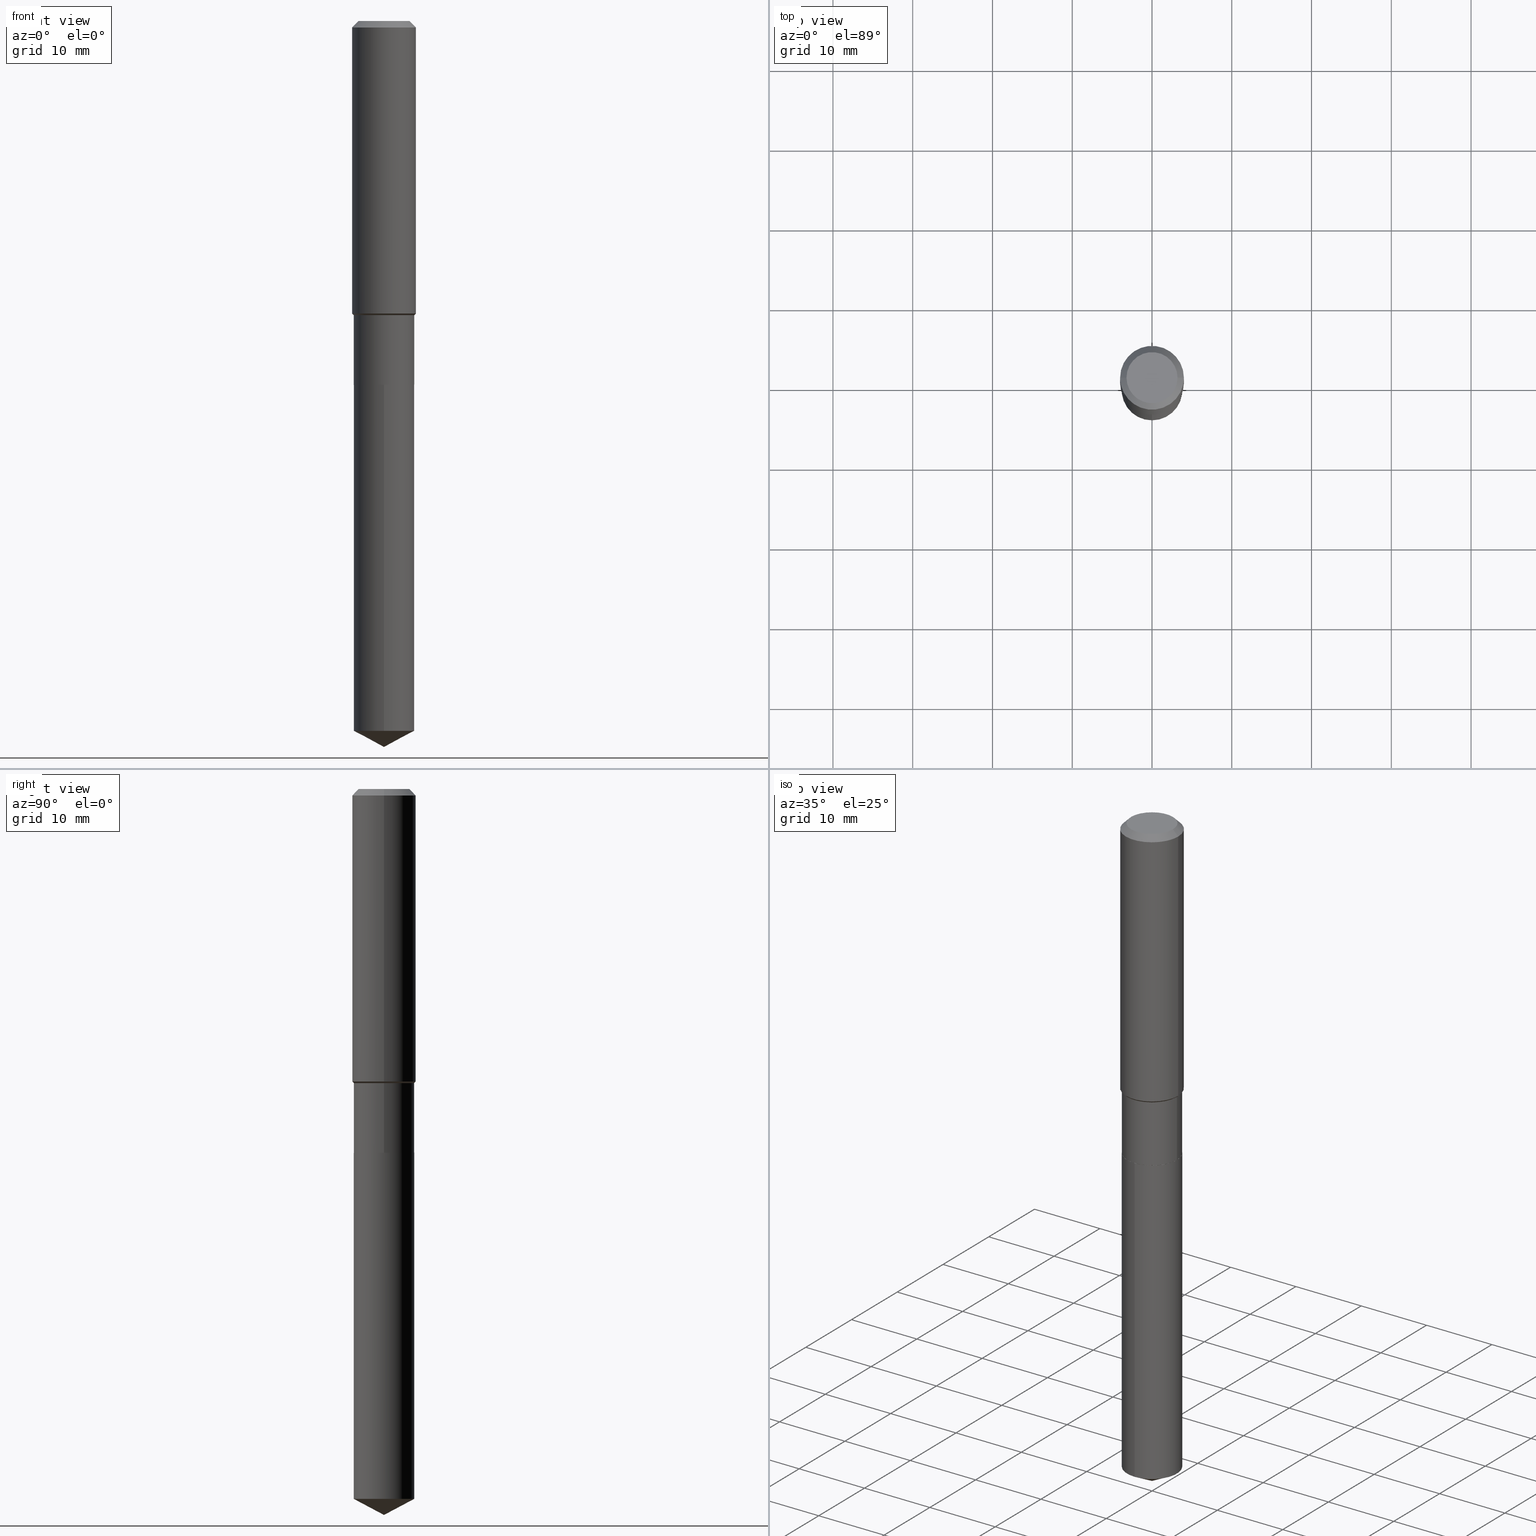
[diagram: canonical four-view strip — front | top / right | iso, engineering-drawing reading convention]
A machine part, canonical four-view strip (front | top / right | iso — engineering-drawing reading convention). The complete STEP part file that produces these views, byte-faithful:
ISO-10303-21;
HEADER;
FILE_DESCRIPTION (( 'STEP AP203' ),
    '1' );
FILE_NAME ('64846.STEP',
    '2024-04-24T19:12:31',
    ( '' ),
    ( '' ),
    'SwSTEP 2.0',
    'SolidWorks 2023',
    '' );
FILE_SCHEMA (( 'CONFIG_CONTROL_DESIGN' ));
ENDSEC;

DATA;
#1 = ORIENTED_EDGE ( 'NONE', *, *, #299, .F. ) ;
#2 = DIRECTION ( 'NONE',  ( -0.7071067811865467956, 7.493145998870351005E-15, 0.7071067811865482389 ) ) ;
#3 = ORIENTED_EDGE ( 'NONE', *, *, #267, .T. ) ;
#4 = EDGE_CURVE ( 'NONE', #93, #434, #73, .T. ) ;
#5 = PLANE ( 'NONE',  #25 ) ;
#6 = CARTESIAN_POINT ( 'NONE',  ( 0.000000000000000000, 0.000000000000000000, 0.000000000000000000 ) ) ;
#7 =( CONVERSION_BASED_UNIT ( 'INCH', #15 ) LENGTH_UNIT ( ) NAMED_UNIT ( #180 ) );
#8 = FACE_OUTER_BOUND ( 'NONE', #108, .T. ) ;
#9 = CARTESIAN_POINT ( 'NONE',  ( 0.1575000000000000011, -1.190510096822576026E-15, -0.03150000000000019451 ) ) ;
#10 = FACE_OUTER_BOUND ( 'NONE', #345, .T. ) ;
#11 = ORIENTED_EDGE ( 'NONE', *, *, #339, .T. ) ;
#12 = AXIS2_PLACEMENT_3D ( 'NONE', #298, #442, #296 ) ;
#13 = CYLINDRICAL_SURFACE ( 'NONE', #444, 0.1496000000000000107 ) ;
#14 = ORIENTED_EDGE ( 'NONE', *, *, #210, .T. ) ;
#15 = LENGTH_MEASURE_WITH_UNIT ( LENGTH_MEASURE( 0.02539999999999999897 ), #389 );
#16 = EDGE_CURVE ( 'NONE', #308, #318, #200, .T. ) ;
#17 = CARTESIAN_POINT ( 'NONE',  ( 4.390350147744175670E-29, -6.268256447625099205E-15, -1.795300000000000118 ) ) ;
#18 = FACE_OUTER_BOUND ( 'NONE', #67, .T. ) ;
#19 = CONICAL_SURFACE ( 'NONE', #332, 0.1495999999999999830, 0.7853981633974472798 ) ;
#20 = APPROVAL_ROLE ( '' ) ;
#21 = DIRECTION ( 'NONE',  ( 1.000000000000000000, -6.982962677686268288E-15, 0.000000000000000000 ) ) ;
#22 = DATE_TIME_ROLE ( 'creation_date' ) ;
#23 = DIRECTION ( 'NONE',  ( 1.000000000000000000, -6.982962677686265133E-15, 0.000000000000000000 ) ) ;
#24 = VERTEX_POINT ( 'NONE', #274 ) ;
#25 = AXIS2_PLACEMENT_3D ( 'NONE', #157, #319, #281 ) ;
#26 = DIRECTION ( 'NONE',  ( -2.445468806185136597E-29, 3.491481338843145583E-15, 1.000000000000000000 ) ) ;
#27 = ORIENTED_EDGE ( 'NONE', *, *, #374, .T. ) ;
#28 = ORIENTED_EDGE ( 'NONE', *, *, #60, .T. ) ;
#29 = DIRECTION ( 'NONE',  ( 0.7071067811866199593, -2.468850131083015945E-15, 0.7071067811864750752 ) ) ;
#30 = EDGE_CURVE ( 'NONE', #223, #155, #277, .T. ) ;
#31 = DIRECTION ( 'NONE',  ( -2.445468806185136597E-29, 3.491481338843145583E-15, 1.000000000000000000 ) ) ;
#32 = VERTEX_POINT ( 'NONE', #178 ) ;
#33 = DIRECTION ( 'NONE',  ( -2.445468806185136597E-29, 3.491481338843145583E-15, 1.000000000000000000 ) ) ;
#34 = VERTEX_POINT ( 'NONE', #266 ) ;
#35 = EDGE_LOOP ( 'NONE', ( #462, #413, #141, #377 ) ) ;
#36 = VECTOR ( 'NONE', #329, 39.37007874015748143 ) ;
#37 = CYLINDRICAL_SURFACE ( 'NONE', #201, 0.1495999999999999830 ) ;
#38 = ORIENTED_EDGE ( 'NONE', *, *, #219, .F. ) ;
#39 = ADVANCED_FACE ( 'NONE', ( #376 ), #19, .T. ) ;
#40 = CARTESIAN_POINT ( 'NONE',  ( 0.000000000000000000, 0.000000000000000000, 0.000000000000000000 ) ) ;
#41 = CARTESIAN_POINT ( 'NONE',  ( -8.751634771197524359E-28, 1.249517822438203283E-13, 35.78737874015747877 ) ) ;
#42 = DIRECTION ( 'NONE',  ( -6.982962677686266711E-15, -1.000000000000000000, 3.652203200085913145E-15 ) ) ;
#43 = AXIS2_PLACEMENT_3D ( 'NONE', #304, #114, #225 ) ;
#44 = CONICAL_SURFACE ( 'NONE', #121, 74.04434902938376695, 1.082104136236487824 ) ;
#45 = FACE_OUTER_BOUND ( 'NONE', #454, .T. ) ;
#46 = EDGE_CURVE ( 'NONE', #69, #342, #437, .T. ) ;
#47 = DIRECTION ( 'NONE',  ( -6.982962677686266711E-15, -1.000000000000000000, 3.652203200085913145E-15 ) ) ;
#48 = DIRECTION ( 'NONE',  ( 1.000000000000000000, 0.000000000000000000, 0.000000000000000000 ) ) ;
#49 = CARTESIAN_POINT ( 'NONE',  ( 7.703226739483226971E-31, -1.099816621735597538E-16, -0.03150000000000019451 ) ) ;
#50 = ORIENTED_EDGE ( 'NONE', *, *, #133, .F. ) ;
#51 = CONICAL_SURFACE ( 'NONE', #286, 0.1491000000000000103, 0.7853981633975507526 ) ;
#52 = CC_DESIGN_APPROVAL ( #354, ( #455 ) ) ;
#53 = EDGE_CURVE ( 'NONE', #269, #69, #418, .T. ) ;
#54 = LINE ( 'NONE', #169, #260 ) ;
#55 = CARTESIAN_POINT ( 'NONE',  ( 7.703226739483226971E-31, -1.099816621735597538E-16, -0.03150000000000019451 ) ) ;
#56 = APPLICATION_CONTEXT ( 'configuration controlled 3d designs of mechanical parts and assemblies' ) ;
#57 = APPLICATION_PROTOCOL_DEFINITION ( 'international standard', 'config_control_design', 1994, #56 ) ;
#58 = CARTESIAN_POINT ( 'NONE',  ( 8.761326692505925349E-29, -1.250900809572977962E-14, -3.582699999999999996 ) ) ;
#59 = PERSON_AND_ORGANIZATION_ROLE ( 'creator' ) ;
#60 = EDGE_CURVE ( 'NONE', #223, #465, #460, .T. ) ;
#61 = CARTESIAN_POINT ( 'NONE',  ( 4.389127413341083429E-29, -6.266510706955677702E-15, -1.794800000000000173 ) ) ;
#62 = CIRCLE ( 'NONE', #173, 0.1575000000000001676 ) ;
#63 = VECTOR ( 'NONE', #323, 39.37007874015748143 ) ;
#64 = APPROVAL_DATE_TIME ( #258, #360 ) ;
#65 = PERSON_AND_ORGANIZATION ( #285, #422 ) ;
#66 = CARTESIAN_POINT ( 'NONE',  ( 3.548864331535870340E-29, -5.066837718929173118E-15, -1.451200000000000045 ) ) ;
#67 = EDGE_LOOP ( 'NONE', ( #70, #28, #196, #168 ) ) ;
#68 = CALENDAR_DATE ( 2024, 24, 4 ) ;
#69 = VERTEX_POINT ( 'NONE', #486 ) ;
#70 = ORIENTED_EDGE ( 'NONE', *, *, #30, .F. ) ;
#71 = AXIS2_PLACEMENT_3D ( 'NONE', #479, #33, #456 ) ;
#72 = AXIS2_PLACEMENT_3D ( 'NONE', #241, #163, #325 ) ;
#73 = LINE ( 'NONE', #305, #480 ) ;
#74 = ORIENTED_EDGE ( 'NONE', *, *, #425, .F. ) ;
#75 = ORIENTED_EDGE ( 'NONE', *, *, #272, .T. ) ;
#76 = DIRECTION ( 'NONE',  ( 1.000000000000000000, -6.982962677686265922E-15, 0.000000000000000000 ) ) ;
#77 = LINE ( 'NONE', #232, #216 ) ;
#78 = ORIENTED_EDGE ( 'NONE', *, *, #231, .F. ) ;
#79 = CARTESIAN_POINT ( 'NONE',  ( -1.044651216581780009E-15, -0.1496000000000122510, -3.503156269023442793 ) ) ;
#80 = CARTESIAN_POINT ( 'NONE',  ( 4.390350147744175670E-29, -6.268256447625099205E-15, -1.795300000000000118 ) ) ;
#81 = EDGE_CURVE ( 'NONE', #155, #34, #77, .T. ) ;
#82 = ORIENTED_EDGE ( 'NONE', *, *, #414, .T. ) ;
#83 = VECTOR ( 'NONE', #257, 39.37007874015748143 ) ;
#84 = DIRECTION ( 'NONE',  ( -2.445468806185136597E-29, 3.491481338843145583E-15, 1.000000000000000000 ) ) ;
#85 = CARTESIAN_POINT ( 'NONE',  ( 4.389127413341083429E-29, -6.266510706955677702E-15, -1.794800000000000173 ) ) ;
#86 = ADVANCED_FACE ( 'NONE', ( #235 ), #379, .T. ) ;
#87 = DIRECTION ( 'NONE',  ( -2.445453622269775898E-29, 3.491503083074156902E-15, 1.000000000000000000 ) ) ;
#88 = EDGE_CURVE ( 'NONE', #32, #188, #309, .T. ) ;
#89 = AXIS2_PLACEMENT_3D ( 'NONE', #190, #371, #346 ) ;
#90 = CARTESIAN_POINT ( 'NONE',  ( -8.751634771197524359E-28, 1.249517822438203283E-13, 35.78737874015747877 ) ) ;
#91 = VECTOR ( 'NONE', #29, 39.37007874015748143 ) ;
#92 = FACE_OUTER_BOUND ( 'NONE', #233, .T. ) ;
#93 = VERTEX_POINT ( 'NONE', #137 ) ;
#94 = PRODUCT_RELATED_PRODUCT_CATEGORY ( 'detail', '', ( #474 ) ) ;
#95 = DIRECTION ( 'NONE',  ( -2.445468806185136597E-29, 3.491481338843145583E-15, 1.000000000000000000 ) ) ;
#96 = CONICAL_SURFACE ( 'NONE', #468, 0.1491000000000000103, 0.7853981633975507526 ) ;
#97 = DATE_AND_TIME ( #106, #207 ) ;
#98 = FACE_OUTER_BOUND ( 'NONE', #264, .T. ) ;
#99 = COORDINATED_UNIVERSAL_TIME_OFFSET ( 5, 0, .BEHIND. ) ;
#100 = LOCAL_TIME ( 15, 12, 31.00000000000000000, #176 ) ;
#101 = DIRECTION ( 'NONE',  ( 6.982962677686265922E-15, 1.000000000000000000, -3.491503083074156902E-15 ) ) ;
#102 = CC_DESIGN_DATE_AND_TIME_ASSIGNMENT ( #224, #171, ( #142 ) ) ;
#103 = DIRECTION ( 'NONE',  ( 1.000000000000000000, -6.982962677686262766E-15, 0.000000000000000000 ) ) ;
#104 = CIRCLE ( 'NONE', #238, 0.1495999999999999830 ) ;
#105 = ORIENTED_EDGE ( 'NONE', *, *, #88, .T. ) ;
#106 = CALENDAR_DATE ( 2024, 24, 4 ) ;
#107 = CC_DESIGN_PERSON_AND_ORGANIZATION_ASSIGNMENT ( #400, #220, ( #463 ) ) ;
#108 = EDGE_LOOP ( 'NONE', ( #209, #451, #3, #271 ) ) ;
#109 = ORIENTED_EDGE ( 'NONE', *, *, #210, .F. ) ;
#110 = ORIENTED_EDGE ( 'NONE', *, *, #240, .T. ) ;
#111 = ORIENTED_EDGE ( 'NONE', *, *, #401, .T. ) ;
#112 = CARTESIAN_POINT ( 'NONE',  ( 7.703226739483226971E-31, -1.099816621735597538E-16, -0.03150000000000019451 ) ) ;
#113 = DIRECTION ( 'NONE',  ( -2.445468806185136597E-29, 3.491481338843145583E-15, 1.000000000000000000 ) ) ;
#114 = DIRECTION ( 'NONE',  ( -2.445453622269775898E-29, 3.491503083074156902E-15, 1.000000000000000000 ) ) ;
#115 = ORIENTED_EDGE ( 'NONE', *, *, #485, .T. ) ;
#116 = LINE ( 'NONE', #9, #130 ) ;
#117 = DIRECTION ( 'NONE',  ( -2.445453622269776178E-29, 3.491503083074156902E-15, 1.000000000000000000 ) ) ;
#118 = DIRECTION ( 'NONE',  ( -2.445468806185136597E-29, 3.491481338843145583E-15, 1.000000000000000000 ) ) ;
#119 = EDGE_CURVE ( 'NONE', #378, #342, #406, .T. ) ;
#120 = FACE_OUTER_BOUND ( 'NONE', #489, .T. ) ;
#121 = AXIS2_PLACEMENT_3D ( 'NONE', #41, #87, #328 ) ;
#122 = DIRECTION ( 'NONE',  ( -2.445468806185136877E-29, 3.491481338843145188E-15, 1.000000000000000000 ) ) ;
#123 = CARTESIAN_POINT ( 'NONE',  ( 0.000000000000000000, 0.000000000000000000, 0.000000000000000000 ) ) ;
#124 = CC_DESIGN_DATE_AND_TIME_ASSIGNMENT ( #262, #22, ( #455 ) ) ;
#125 = DIRECTION ( 'NONE',  ( 1.000000000000000000, -6.982962677686267499E-15, 0.000000000000000000 ) ) ;
#126 = ORIENTED_EDGE ( 'NONE', *, *, #16, .F. ) ;
#127 = CARTESIAN_POINT ( 'NONE',  ( 0.1575000000000001676, -6.139071638087900053E-15, -1.443299999999999805 ) ) ;
#128 = COORDINATED_UNIVERSAL_TIME_OFFSET ( 5, 0, .BEHIND. ) ;
#129 = DIRECTION ( 'NONE',  ( 2.445453622269775618E-29, -3.491503083074156902E-15, -1.000000000000000000 ) ) ;
#130 = VECTOR ( 'NONE', #159, 39.37007874015748143 ) ;
#131 = APPROVAL_STATUS ( 'not_yet_approved' ) ;
#132 = PLANE ( 'NONE',  #490 ) ;
#133 = EDGE_CURVE ( 'NONE', #24, #314, #146, .T. ) ;
#134 = DIRECTION ( 'NONE',  ( 1.000000000000000000, -6.982962677686265133E-15, 0.000000000000000000 ) ) ;
#135 = PERSON_AND_ORGANIZATION ( #285, #422 ) ;
#136 = UNCERTAINTY_MEASURE_WITH_UNIT (LENGTH_MEASURE( 1.000000000000000082E-05 ), #7, 'distance_accuracy_value', 'NONE');
#137 = CARTESIAN_POINT ( 'NONE',  ( 0.1496000000000000107, -7.311161923537544091E-15, -1.794800000000000173 ) ) ;
#138 = VECTOR ( 'NONE', #365, 39.37007874015748854 ) ;
#139 = ADVANCED_FACE ( 'NONE', ( #18 ), #96, .T. ) ;
#140 = CARTESIAN_POINT ( 'NONE',  ( 7.703226739483226971E-31, -1.099816621735597538E-16, -0.03150000000000019451 ) ) ;
#141 = ORIENTED_EDGE ( 'NONE', *, *, #240, .F. ) ;
#142 = SECURITY_CLASSIFICATION ( '', '', #398 ) ;
#143 = EDGE_LOOP ( 'NONE', ( #11, #237, #409, #109 ) ) ;
#144 = DIRECTION ( 'NONE',  ( -0.7071067811865452413, 2.468850131082233000E-15, -0.7071067811865497932 ) ) ;
#145 = DIRECTION ( 'NONE',  ( 1.000000000000000000, -6.982962677686262766E-15, 0.000000000000000000 ) ) ;
#146 = CIRCLE ( 'NONE', #259, 0.1496000000000000107 ) ;
#147 = ORIENTED_EDGE ( 'NONE', *, *, #60, .F. ) ;
#148 = VECTOR ( 'NONE', #2, 39.37007874015748143 ) ;
#149 = ADVANCED_FACE ( 'NONE', ( #205 ), #132, .F. ) ;
#150 = MANIFOLD_SOLID_BREP ( 'Body-Move/Copy2[1]', #192 ) ;
#151 = ORIENTED_EDGE ( 'NONE', *, *, #315, .F. ) ;
#152 = EDGE_LOOP ( 'NONE', ( #275, #226, #126 ) ) ;
#153 = APPLICATION_CONTEXT ( 'configuration controlled 3d designs of mechanical parts and assemblies' ) ;
#154 = DIRECTION ( 'NONE',  ( 1.000000000000000000, -6.982962677686268288E-15, 0.000000000000000000 ) ) ;
#155 = VERTEX_POINT ( 'NONE', #402 ) ;
#156 = FACE_OUTER_BOUND ( 'NONE', #349, .T. ) ;
#157 = CARTESIAN_POINT ( 'NONE',  ( 4.390350147744175670E-29, -6.268256447625099205E-15, -1.795300000000000118 ) ) ;
#158 = CIRCLE ( 'NONE', #270, 0.1495999999999999830 ) ;
#159 = DIRECTION ( 'NONE',  ( 0.7071067811865452413, -7.319954787623248157E-15, -0.7071067811865497932 ) ) ;
#160 = ADVANCED_FACE ( 'NONE', ( #10 ), #51, .T. ) ;
#161 =( NAMED_UNIT ( * ) SI_UNIT ( $, .STERADIAN. ) SOLID_ANGLE_UNIT ( ) );
#162 = CARTESIAN_POINT ( 'NONE',  ( -0.1495999999999999830, -4.003865786232063558E-15, -1.451200000000000045 ) ) ;
#163 = DIRECTION ( 'NONE',  ( -2.445453622269775898E-29, 3.491503083074156902E-15, 1.000000000000000000 ) ) ;
#164 = EDGE_CURVE ( 'NONE', #378, #269, #62, .T. ) ;
#165 = AXIS2_PLACEMENT_3D ( 'NONE', #85, #350, #154 ) ;
#166 = CARTESIAN_POINT ( 'NONE',  ( -0.1260000000000000009, 9.348441284752484904E-16, 3.860086710906114178E-18 ) ) ;
#167 = LINE ( 'NONE', #436, #36 ) ;
#168 = ORIENTED_EDGE ( 'NONE', *, *, #414, .F. ) ;
#169 = CARTESIAN_POINT ( 'NONE',  ( -0.1575000000000000011, 9.898349595620272334E-16, -0.03150000000000019451 ) ) ;
#170 = CARTESIAN_POINT ( 'NONE',  ( 4.390350147744175670E-29, -6.268256447625099205E-15, -1.795300000000000118 ) ) ;
#171 = DATE_TIME_ROLE ( 'classification_date' ) ;
#172 = PLANE ( 'NONE',  #358 ) ;
#173 = AXIS2_PLACEMENT_3D ( 'NONE', #247, #397, #125 ) ;
#174 = AXIS2_PLACEMENT_3D ( 'NONE', #417, #118, #282 ) ;
#175 = ADVANCED_FACE ( 'NONE', ( #98 ), #369, .T. ) ;
#176 = COORDINATED_UNIVERSAL_TIME_OFFSET ( 5, 0, .BEHIND. ) ;
#177 = CARTESIAN_POINT ( 'NONE',  ( 4.390350147744175670E-29, -6.268256447625099205E-15, -1.795300000000000118 ) ) ;
#178 = CARTESIAN_POINT ( 'NONE',  ( 0.1260000000000000009, -1.027466422270894443E-15, 3.860086710919128072E-18 ) ) ;
#179 = APPROVAL ( #131, 'UNSPECIFIED' ) ;
#180 = DIMENSIONAL_EXPONENTS ( 1.000000000000000000, 0.000000000000000000, 0.000000000000000000, 0.000000000000000000, 0.000000000000000000, 0.000000000000000000, 0.000000000000000000 ) ;
#181 = CIRCLE ( 'NONE', #165, 0.1496000000000000107 ) ;
#182 = ORIENTED_EDGE ( 'NONE', *, *, #292, .T. ) ;
#183 = APPROVAL_PERSON_ORGANIZATION ( #439, #179, #297 ) ;
#184 = EDGE_LOOP ( 'NONE', ( #428, #82, #395, #450 ) ) ;
#185 = ORIENTED_EDGE ( 'NONE', *, *, #267, .F. ) ;
#186 = DIRECTION ( 'NONE',  ( 1.000000000000000000, -6.982962677686265922E-15, 0.000000000000000000 ) ) ;
#187 = CC_DESIGN_SECURITY_CLASSIFICATION ( #142, ( #463 ) ) ;
#188 = VERTEX_POINT ( 'NONE', #166 ) ;
#189 = EDGE_LOOP ( 'NONE', ( #38, #27, #312 ) ) ;
#190 = CARTESIAN_POINT ( 'NONE',  ( -9.439721640706201686E-47, 1.347742071746726764E-32, 3.860086710912459732E-18 ) ) ;
#191 = CC_DESIGN_PERSON_AND_ORGANIZATION_ASSIGNMENT ( #218, #59, ( #463 ) ) ;
#192 = CLOSED_SHELL ( 'NONE', ( #249, #478, #441, #175, #149 ) ) ;
#193 = ORIENTED_EDGE ( 'NONE', *, *, #164, .T. ) ;
#194 = CONICAL_SURFACE ( 'NONE', #174, 0.1495999999999999830, 0.7853981633974472798 ) ;
#195 = CARTESIAN_POINT ( 'NONE',  ( 0.1495999999999999830, -6.111488935511037930E-15, -1.451200000000000045 ) ) ;
#196 = ORIENTED_EDGE ( 'NONE', *, *, #299, .T. ) ;
#197 = CARTESIAN_POINT ( 'NONE',  ( 0.1491000000000000103, -7.309416182868121799E-15, -1.795300000000000118 ) ) ;
#198 = EDGE_CURVE ( 'NONE', #93, #155, #236, .T. ) ;
#199 = DIRECTION ( 'NONE',  ( -2.445453622269775898E-29, 3.491503083074156902E-15, 1.000000000000000000 ) ) ;
#200 = CIRCLE ( 'NONE', #43, 0.1496000000000000107 ) ;
#201 = AXIS2_PLACEMENT_3D ( 'NONE', #234, #113, #351 ) ;
#202 = CARTESIAN_POINT ( 'NONE',  ( 8.761381689942906998E-29, -1.250893002089391382E-14, -3.582699999999999996 ) ) ;
#203 = EDGE_LOOP ( 'NONE', ( #449, #341 ) ) ;
#204 = CARTESIAN_POINT ( 'NONE',  ( 8.566833447143701584E-29, -1.223124187636797631E-14, -3.503156269023443237 ) ) ;
#205 = FACE_OUTER_BOUND ( 'NONE', #203, .T. ) ;
#206 = ORIENTED_EDGE ( 'NONE', *, *, #445, .T. ) ;
#207 = LOCAL_TIME ( 15, 12, 31.00000000000000000, #99 ) ;
#208 = CARTESIAN_POINT ( 'NONE',  ( -4.719860820353100843E-47, 6.738710358733633822E-33, 1.930043355456229866E-18 ) ) ;
#209 = ORIENTED_EDGE ( 'NONE', *, *, #445, .F. ) ;
#210 = EDGE_CURVE ( 'NONE', #318, #314, #289, .T. ) ;
#211 = DIRECTION ( 'NONE',  ( -2.445468806185136597E-29, 3.491481338843145583E-15, 1.000000000000000000 ) ) ;
#212 = PERSON_AND_ORGANIZATION_ROLE ( 'classification_officer' ) ;
#213 = ADVANCED_FACE ( 'NONE', ( #327 ), #172, .F. ) ;
#214 = DIRECTION ( 'NONE',  ( -2.445468806185136597E-29, 3.491481338843145583E-15, 1.000000000000000000 ) ) ;
#215 = PERSON_AND_ORGANIZATION ( #285, #422 ) ;
#216 = VECTOR ( 'NONE', #313, 39.37007874015748143 ) ;
#217 = DIRECTION ( 'NONE',  ( -2.445468806185136597E-29, 3.491481338843145583E-15, 1.000000000000000000 ) ) ;
#218 = PERSON_AND_ORGANIZATION ( #285, #422 ) ;
#219 = EDGE_CURVE ( 'NONE', #416, #318, #476, .T. ) ;
#220 = PERSON_AND_ORGANIZATION_ROLE ( 'design_supplier' ) ;
#221 = DIRECTION ( 'NONE',  ( -2.445468806185136597E-29, 3.491481338843145583E-15, 1.000000000000000000 ) ) ;
#222 = DIRECTION ( 'NONE',  ( -2.445468806185136877E-29, 3.491481338843145188E-15, 1.000000000000000000 ) ) ;
#223 = VERTEX_POINT ( 'NONE', #472 ) ;
#224 = DATE_AND_TIME ( #68, #407 ) ;
#225 = DIRECTION ( 'NONE',  ( -6.982962677686266711E-15, -1.000000000000000000, 3.652203200085913145E-15 ) ) ;
#226 = ORIENTED_EDGE ( 'NONE', *, *, #219, .T. ) ;
#227 = CARTESIAN_POINT ( 'NONE',  ( 3.548864331535870340E-29, -5.066837718929173118E-15, -1.451200000000000045 ) ) ;
#228 = LOCAL_TIME ( 15, 12, 31.00000000000000000, #477 ) ;
#229 = ORIENTED_EDGE ( 'NONE', *, *, #272, .F. ) ;
#230 = DIRECTION ( 'NONE',  ( 2.445468806185136597E-29, -3.491481338843145583E-15, -1.000000000000000000 ) ) ;
#231 = EDGE_CURVE ( 'NONE', #465, #223, #352, .T. ) ;
#232 = CARTESIAN_POINT ( 'NONE',  ( -0.1495999999999999830, 1.062971932697109757E-15, -7.358726895021338760E-30 ) ) ;
#233 = EDGE_LOOP ( 'NONE', ( #372, #330, #484, #306 ) ) ;
#234 = CARTESIAN_POINT ( 'NONE',  ( 0.000000000000000000, 0.000000000000000000, 0.000000000000000000 ) ) ;
#235 = FACE_OUTER_BOUND ( 'NONE', #35, .T. ) ;
#236 = CIRCLE ( 'NONE', #302, 0.1496000000000000107 ) ;
#237 = ORIENTED_EDGE ( 'NONE', *, *, #425, .T. ) ;
#238 = AXIS2_PLACEMENT_3D ( 'NONE', #66, #221, #415 ) ;
#239 = CYLINDRICAL_SURFACE ( 'NONE', #473, 0.1575000000000000844 ) ;
#240 = EDGE_CURVE ( 'NONE', #434, #34, #158, .T. ) ;
#241 = CARTESIAN_POINT ( 'NONE',  ( 4.390350147744175670E-29, -6.268256447625099205E-15, -1.795300000000000118 ) ) ;
#242 = LINE ( 'NONE', #283, #320 ) ;
#243 = AXIS2_PLACEMENT_3D ( 'NONE', #140, #31, #186 ) ;
#244 = CLOSED_SHELL ( 'NONE', ( #160, #261, #393, #39, #86, #370, #380, #421, #488, #213, #466, #139 ) ) ;
#245 = AXIS2_PLACEMENT_3D ( 'NONE', #40, #84, #459 ) ;
#246 = DIRECTION ( 'NONE',  ( -2.445453622269775898E-29, 3.491503083074156902E-15, 1.000000000000000000 ) ) ;
#247 = CARTESIAN_POINT ( 'NONE',  ( 3.529545127967007664E-29, -5.039255016352311783E-15, -1.443299999999999805 ) ) ;
#248 = ORIENTED_EDGE ( 'NONE', *, *, #46, .F. ) ;
#249 = ADVANCED_FACE ( 'NONE', ( #392 ), #13, .T. ) ;
#250 = MECHANICAL_CONTEXT ( 'NONE', #153, 'mechanical' ) ;
#251 = LOCAL_TIME ( 15, 12, 31.00000000000000000, #128 ) ;
#252 = DIRECTION ( 'NONE',  ( 1.000000000000000000, -6.982962677686265922E-15, 4.876281427513067258E-29 ) ) ;
#253 = PRODUCT_DEFINITION_SHAPE ( 'NONE', 'NONE',  #455 ) ;
#254 = PERSON_AND_ORGANIZATION ( #285, #422 ) ;
#255 = CARTESIAN_POINT ( 'NONE',  ( 4.390350147744175670E-29, -6.268256447625099205E-15, -1.795300000000000118 ) ) ;
#256 = PERSON_AND_ORGANIZATION_ROLE ( 'creator' ) ;
#257 = DIRECTION ( 'NONE',  ( -2.445453622269776178E-29, 3.491503083074156902E-15, 1.000000000000000000 ) ) ;
#258 = DATE_AND_TIME ( #335, #100 ) ;
#259 = AXIS2_PLACEMENT_3D ( 'NONE', #431, #357, #331 ) ;
#260 = VECTOR ( 'NONE', #144, 39.37007874015748143 ) ;
#261 = ADVANCED_FACE ( 'NONE', ( #92 ), #368, .T. ) ;
#262 = DATE_AND_TIME ( #481, #251 ) ;
#263 = DIRECTION ( 'NONE',  ( -2.445468806185136597E-29, 3.491481338843145583E-15, 1.000000000000000000 ) ) ;
#264 = EDGE_LOOP ( 'NONE', ( #74, #457, #14, #50 ) ) ;
#265 = APPROVAL_DATE_TIME ( #97, #354 ) ;
#266 = CARTESIAN_POINT ( 'NONE',  ( -0.1495999999999999830, -4.603702280245315850E-15, -1.451200000000000045 ) ) ;
#267 = EDGE_CURVE ( 'NONE', #434, #269, #167, .T. ) ;
#268 = ORIENTED_EDGE ( 'NONE', *, *, #231, .T. ) ;
#269 = VERTEX_POINT ( 'NONE', #127 ) ;
#270 = AXIS2_PLACEMENT_3D ( 'NONE', #443, #433, #103 ) ;
#271 = ORIENTED_EDGE ( 'NONE', *, *, #164, .F. ) ;
#272 = EDGE_CURVE ( 'NONE', #188, #32, #438, .T. ) ;
#273 = LINE ( 'NONE', #405, #91 ) ;
#274 = CARTESIAN_POINT ( 'NONE',  ( 1.062971932697195743E-15, 0.1495999999999937102, -1.795300000000000562 ) ) ;
#275 = ORIENTED_EDGE ( 'NONE', *, *, #374, .F. ) ;
#276 = DIRECTION ( 'NONE',  ( -2.445468806185136597E-29, 3.491481338843145583E-15, 1.000000000000000000 ) ) ;
#277 = LINE ( 'NONE', #344, #279 ) ;
#278 = ORIENTED_EDGE ( 'NONE', *, *, #401, .F. ) ;
#279 = VECTOR ( 'NONE', #448, 39.37007874015748143 ) ;
#280 = APPROVAL_PERSON_ORGANIZATION ( #254, #354, #293 ) ;
#281 = DIRECTION ( 'NONE',  ( 1.000000000000000000, -6.982962677686265922E-15, 4.876176775795935793E-29 ) ) ;
#282 = DIRECTION ( 'NONE',  ( 1.000000000000000000, -6.982962677686262766E-15, 0.000000000000000000 ) ) ;
#283 = CARTESIAN_POINT ( 'NONE',  ( 1.062971932697153933E-15, 0.1495999999999937657, -1.795300000000000562 ) ) ;
#284 = ORIENTED_EDGE ( 'NONE', *, *, #119, .T. ) ;
#285 = PERSON ( 'UNSPECIFIED', 'UNSPECIFIED', 'UNSPECIFIED', ('UNSPECIFIED'), ('UNSPECIFIED'), ('UNSPECIFIED') ) ;
#286 = AXIS2_PLACEMENT_3D ( 'NONE', #17, #475, #300 ) ;
#287 = CIRCLE ( 'NONE', #72, 0.1496000000000000107 ) ;
#288 = CC_DESIGN_PERSON_AND_ORGANIZATION_ASSIGNMENT ( #65, #256, ( #455 ) ) ;
#289 = LINE ( 'NONE', #399, #83 ) ;
#290 = EDGE_LOOP ( 'NONE', ( #110, #206, #278, #185 ) ) ;
#291 = CARTESIAN_POINT ( 'NONE',  ( -9.439721640706201686E-47, 1.347742071746726764E-32, 3.860086710912459732E-18 ) ) ;
#292 = EDGE_CURVE ( 'NONE', #342, #69, #295, .T. ) ;
#293 = APPROVAL_ROLE ( '' ) ;
#294 = VECTOR ( 'NONE', #337, 39.37007874015748143 ) ;
#295 = CIRCLE ( 'NONE', #340, 0.1575000000000000011 ) ;
#296 = DIRECTION ( 'NONE',  ( -6.982962677686266711E-15, -1.000000000000000000, 3.652203200085913145E-15 ) ) ;
#297 = APPROVAL_ROLE ( '' ) ;
#298 = CARTESIAN_POINT ( 'NONE',  ( 4.390350147744175670E-29, -6.268256447625099205E-15, -1.795300000000000118 ) ) ;
#299 = EDGE_CURVE ( 'NONE', #465, #93, #273, .T. ) ;
#300 = DIRECTION ( 'NONE',  ( 1.000000000000000000, -6.982962677686265133E-15, 0.000000000000000000 ) ) ;
#301 = CALENDAR_DATE ( 2024, 24, 4 ) ;
#302 = AXIS2_PLACEMENT_3D ( 'NONE', #61, #214, #21 ) ;
#303 =( GEOMETRIC_REPRESENTATION_CONTEXT ( 3 ) GLOBAL_UNCERTAINTY_ASSIGNED_CONTEXT ( ( #136 ) ) GLOBAL_UNIT_ASSIGNED_CONTEXT ( ( #7, #467, #161 ) ) REPRESENTATION_CONTEXT ( 'NONE', 'WORKASPACE' ) );
#304 = CARTESIAN_POINT ( 'NONE',  ( 8.566833447143701584E-29, -1.223124187636797631E-14, -3.503156269023443237 ) ) ;
#305 = CARTESIAN_POINT ( 'NONE',  ( 0.1495999999999999830, -1.044651216581865404E-15, 7.294760456590720327E-30 ) ) ;
#306 = ORIENTED_EDGE ( 'NONE', *, *, #485, .F. ) ;
#307 = EDGE_CURVE ( 'NONE', #34, #434, #104, .T. ) ;
#308 = VERTEX_POINT ( 'NONE', #483 ) ;
#309 = CIRCLE ( 'NONE', #89, 0.1260000000000000009 ) ;
#310 = CARTESIAN_POINT ( 'NONE',  ( 0.1575000000000000844, -1.099816621735587677E-15, 7.679978421878603638E-30 ) ) ;
#311 = AXIS2_PLACEMENT_3D ( 'NONE', #90, #246, #355 ) ;
#312 = ORIENTED_EDGE ( 'NONE', *, *, #339, .F. ) ;
#313 = DIRECTION ( 'NONE',  ( -2.445468806185136877E-29, 3.491481338843145188E-15, 1.000000000000000000 ) ) ;
#314 = VERTEX_POINT ( 'NONE', #447 ) ;
#315 = EDGE_CURVE ( 'NONE', #32, #69, #116, .T. ) ;
#316 = CARTESIAN_POINT ( 'NONE',  ( 3.529545127967007664E-29, -5.039255016352311783E-15, -1.443299999999999805 ) ) ;
#317 = MANIFOLD_SOLID_BREP ( 'Body-Move/Copy2[2]', #244 ) ;
#318 = VERTEX_POINT ( 'NONE', #79 ) ;
#319 = DIRECTION ( 'NONE',  ( -2.438088387897960049E-29, 3.491481338843145188E-15, 1.000000000000000000 ) ) ;
#320 = VECTOR ( 'NONE', #117, 39.37007874015748143 ) ;
#321 = CARTESIAN_POINT ( 'NONE',  ( -0.1575000000000000011, -1.455513530440777031E-15, -0.03150000000000019451 ) ) ;
#322 = PERSON_AND_ORGANIZATION ( #285, #422 ) ;
#323 = DIRECTION ( 'NONE',  ( 6.273719981627770021E-15, 0.8829475928589302081, 0.4694715627858845886 ) ) ;
#324 = EDGE_CURVE ( 'NONE', #314, #24, #287, .T. ) ;
#325 = DIRECTION ( 'NONE',  ( -6.982962677686265922E-15, -1.000000000000000000, 3.652203200085913145E-15 ) ) ;
#326 = DESIGN_CONTEXT ( 'detailed design', #56, 'design' ) ;
#327 = FACE_OUTER_BOUND ( 'NONE', #347, .T. ) ;
#328 = DIRECTION ( 'NONE',  ( -6.982962677686265922E-15, -1.000000000000000000, 3.541896320645549825E-15 ) ) ;
#329 = DIRECTION ( 'NONE',  ( 0.7071067811865467956, -2.468850131082249172E-15, 0.7071067811865482389 ) ) ;
#330 = ORIENTED_EDGE ( 'NONE', *, *, #315, .T. ) ;
#331 = DIRECTION ( 'NONE',  ( -6.982962677686265922E-15, -1.000000000000000000, 3.652203200085913145E-15 ) ) ;
#332 = AXIS2_PLACEMENT_3D ( 'NONE', #227, #26, #145 ) ;
#333 = CONICAL_SURFACE ( 'NONE', #390, 0.1575000000000000011, 0.7853981633974450594 ) ;
#334 = CARTESIAN_POINT ( 'NONE',  ( 4.390350147744175670E-29, -6.268256447625099205E-15, -1.795300000000000118 ) ) ;
#335 = CALENDAR_DATE ( 2024, 24, 4 ) ;
#336 = DIRECTION ( 'NONE',  ( -2.445468806185136597E-29, 3.491481338843145583E-15, 1.000000000000000000 ) ) ;
#337 = DIRECTION ( 'NONE',  ( -2.445468806185136877E-29, 3.491481338843145188E-15, 1.000000000000000000 ) ) ;
#338 = APPROVAL_STATUS ( 'not_yet_approved' ) ;
#339 = EDGE_CURVE ( 'NONE', #318, #308, #383, .T. ) ;
#340 = AXIS2_PLACEMENT_3D ( 'NONE', #55, #211, #76 ) ;
#341 = ORIENTED_EDGE ( 'NONE', *, *, #133, .T. ) ;
#342 = VERTEX_POINT ( 'NONE', #321 ) ;
#343 = SHAPE_DEFINITION_REPRESENTATION ( #253, #386 ) ;
#344 = CARTESIAN_POINT ( 'NONE',  ( -0.1491000000000000103, -5.208837228606789755E-15, -1.795300000000000118 ) ) ;
#345 = EDGE_LOOP ( 'NONE', ( #268, #410, #419, #1 ) ) ;
#346 = DIRECTION ( 'NONE',  ( 1.000000000000000000, -6.982962677686265922E-15, 4.876281427513067258E-29 ) ) ;
#347 = EDGE_LOOP ( 'NONE', ( #75, #105 ) ) ;
#348 = LINE ( 'NONE', #162, #148 ) ;
#349 = EDGE_LOOP ( 'NONE', ( #151, #229, #115, #182 ) ) ;
#350 = DIRECTION ( 'NONE',  ( -2.445468806185136597E-29, 3.491481338843145583E-15, 1.000000000000000000 ) ) ;
#351 = DIRECTION ( 'NONE',  ( 1.000000000000000000, -6.982962677686266711E-15, 4.876176775795936353E-29 ) ) ;
#352 = CIRCLE ( 'NONE', #375, 0.1491000000000000103 ) ;
#353 = CARTESIAN_POINT ( 'NONE',  ( -0.1575000000000001676, -3.920150207530152602E-15, -1.443299999999999805 ) ) ;
#354 = APPROVAL ( #338, 'UNSPECIFIED' ) ;
#355 = DIRECTION ( 'NONE',  ( -6.982962677686265922E-15, -1.000000000000000000, 3.541896320645549825E-15 ) ) ;
#356 = CC_DESIGN_APPROVAL ( #360, ( #142 ) ) ;
#357 = DIRECTION ( 'NONE',  ( -2.445453622269775898E-29, 3.491503083074156902E-15, 1.000000000000000000 ) ) ;
#358 = AXIS2_PLACEMENT_3D ( 'NONE', #208, #440, #363 ) ;
#359 = AXIS2_PLACEMENT_3D ( 'NONE', #123, #432, #48 ) ;
#360 = APPROVAL ( #367, 'UNSPECIFIED' ) ;
#361 = DIRECTION ( 'NONE',  ( -1.000000000000000000, 6.982962677686265922E-15, 0.000000000000000000 ) ) ;
#362 = EDGE_LOOP ( 'NONE', ( #78, #147 ) ) ;
#363 = DIRECTION ( 'NONE',  ( -1.000000000000000000, 6.982962677686265922E-15, -4.876176775795935793E-29 ) ) ;
#364 = COORDINATED_UNIVERSAL_TIME_OFFSET ( 5, 0, .BEHIND. ) ;
#365 = DIRECTION ( 'NONE',  ( -6.165590087286839185E-15, -0.8829475928589269884, 0.4694715627858908058 ) ) ;
#366 = VECTOR ( 'NONE', #122, 39.37007874015748143 ) ;
#367 = APPROVAL_STATUS ( 'not_yet_approved' ) ;
#368 = CONICAL_SURFACE ( 'NONE', #482, 0.1575000000000000011, 0.7853981633974450594 ) ;
#369 = CYLINDRICAL_SURFACE ( 'NONE', #12, 0.1496000000000000107 ) ;
#370 = ADVANCED_FACE ( 'NONE', ( #464 ), #37, .T. ) ;
#371 = DIRECTION ( 'NONE',  ( -2.445468806185136597E-29, 3.491481338843145583E-15, 1.000000000000000000 ) ) ;
#372 = ORIENTED_EDGE ( 'NONE', *, *, #88, .F. ) ;
#373 = DATE_AND_TIME ( #301, #228 ) ;
#374 = EDGE_CURVE ( 'NONE', #416, #308, #429, .T. ) ;
#375 = AXIS2_PLACEMENT_3D ( 'NONE', #177, #336, #134 ) ;
#376 = FACE_OUTER_BOUND ( 'NONE', #290, .T. ) ;
#377 = ORIENTED_EDGE ( 'NONE', *, *, #4, .F. ) ;
#378 = VERTEX_POINT ( 'NONE', #353 ) ;
#379 = CYLINDRICAL_SURFACE ( 'NONE', #71, 0.1495999999999999830 ) ;
#380 = ADVANCED_FACE ( 'NONE', ( #8 ), #194, .T. ) ;
#381 = ORIENTED_EDGE ( 'NONE', *, *, #53, .F. ) ;
#382 = CYLINDRICAL_SURFACE ( 'NONE', #245, 0.1575000000000000844 ) ;
#383 = CIRCLE ( 'NONE', #411, 0.1496000000000000107 ) ;
#384 = ORIENTED_EDGE ( 'NONE', *, *, #53, .T. ) ;
#385 = FACE_OUTER_BOUND ( 'NONE', #362, .T. ) ;
#386 = ADVANCED_BREP_SHAPE_REPRESENTATION ( '64846', ( #150, #317, #359 ), #303 ) ;
#387 = CC_DESIGN_APPROVAL ( #179, ( #463 ) ) ;
#388 = DIRECTION ( 'NONE',  ( -2.445468806185136597E-29, 3.491481338843145583E-15, 1.000000000000000000 ) ) ;
#389 =( LENGTH_UNIT ( ) NAMED_UNIT ( * ) SI_UNIT ( $, .METRE. ) );
#390 = AXIS2_PLACEMENT_3D ( 'NONE', #112, #230, #452 ) ;
#391 = DIRECTION ( 'NONE',  ( 1.000000000000000000, -6.982962677686267499E-15, 4.876176775795936353E-29 ) ) ;
#392 = FACE_OUTER_BOUND ( 'NONE', #143, .T. ) ;
#393 = ADVANCED_FACE ( 'NONE', ( #120 ), #239, .T. ) ;
#394 = DIRECTION ( 'NONE',  ( 1.000000000000000000, -6.982962677686265133E-15, 0.000000000000000000 ) ) ;
#395 = ORIENTED_EDGE ( 'NONE', *, *, #4, .T. ) ;
#396 = AXIS2_PLACEMENT_3D ( 'NONE', #316, #276, #458 ) ;
#397 = DIRECTION ( 'NONE',  ( -2.445468806185136597E-29, 3.491481338843145583E-15, 1.000000000000000000 ) ) ;
#398 = SECURITY_CLASSIFICATION_LEVEL ( 'unclassified' ) ;
#399 = CARTESIAN_POINT ( 'NONE',  ( -1.044651216581821622E-15, -0.1496000000000062835, -1.795299999999999452 ) ) ;
#400 = PERSON_AND_ORGANIZATION ( #285, #422 ) ;
#401 = EDGE_CURVE ( 'NONE', #269, #378, #453, .T. ) ;
#402 = CARTESIAN_POINT ( 'NONE',  ( -0.1496000000000000107, -4.603702280245315061E-15, -1.794800000000000173 ) ) ;
#403 = APPROVAL_DATE_TIME ( #373, #179 ) ;
#404 = AXIS2_PLACEMENT_3D ( 'NONE', #291, #95, #252 ) ;
#405 = CARTESIAN_POINT ( 'NONE',  ( 0.1491000000000000103, -7.309416182868121799E-15, -1.795300000000000118 ) ) ;
#406 = LINE ( 'NONE', #424, #366 ) ;
#407 = LOCAL_TIME ( 15, 12, 31.00000000000000000, #364 ) ;
#408 = CC_DESIGN_PERSON_AND_ORGANIZATION_ASSIGNMENT ( #215, #212, ( #142 ) ) ;
#409 = ORIENTED_EDGE ( 'NONE', *, *, #324, .F. ) ;
#410 = ORIENTED_EDGE ( 'NONE', *, *, #30, .T. ) ;
#411 = AXIS2_PLACEMENT_3D ( 'NONE', #204, #199, #42 ) ;
#412 = ORIENTED_EDGE ( 'NONE', *, *, #292, .F. ) ;
#413 = ORIENTED_EDGE ( 'NONE', *, *, #81, .T. ) ;
#414 = EDGE_CURVE ( 'NONE', #155, #93, #181, .T. ) ;
#415 = DIRECTION ( 'NONE',  ( 1.000000000000000000, -6.982962677686262766E-15, 0.000000000000000000 ) ) ;
#416 = VERTEX_POINT ( 'NONE', #427 ) ;
#417 = CARTESIAN_POINT ( 'NONE',  ( 3.548864331535870340E-29, -5.066837718929173118E-15, -1.451200000000000045 ) ) ;
#418 = LINE ( 'NONE', #310, #294 ) ;
#419 = ORIENTED_EDGE ( 'NONE', *, *, #198, .F. ) ;
#420 = FACE_OUTER_BOUND ( 'NONE', #152, .T. ) ;
#421 = ADVANCED_FACE ( 'NONE', ( #45 ), #382, .T. ) ;
#422 = ORGANIZATION ( 'UNSPECIFIED', 'UNSPECIFIED', '' ) ;
#423 = FACE_OUTER_BOUND ( 'NONE', #189, .T. ) ;
#424 = CARTESIAN_POINT ( 'NONE',  ( -0.1575000000000000844, 1.119104808822158392E-15, -7.747322767151481189E-30 ) ) ;
#425 = EDGE_CURVE ( 'NONE', #308, #24, #242, .T. ) ;
#426 = APPROVAL_PERSON_ORGANIZATION ( #135, #360, #20 ) ;
#427 = CARTESIAN_POINT ( 'NONE',  ( 8.761326692505925349E-29, -1.250900809572977962E-14, -3.582699999999999996 ) ) ;
#428 = ORIENTED_EDGE ( 'NONE', *, *, #81, .F. ) ;
#429 = LINE ( 'NONE', #202, #63 ) ;
#430 = AXIS2_PLACEMENT_3D ( 'NONE', #80, #263, #23 ) ;
#431 = CARTESIAN_POINT ( 'NONE',  ( 4.390350147744175670E-29, -6.268256447625099205E-15, -1.795300000000000118 ) ) ;
#432 = DIRECTION ( 'NONE',  ( 0.000000000000000000, 0.000000000000000000, 1.000000000000000000 ) ) ;
#433 = DIRECTION ( 'NONE',  ( -2.445468806185136597E-29, 3.491481338843145583E-15, 1.000000000000000000 ) ) ;
#434 = VERTEX_POINT ( 'NONE', #195 ) ;
#435 = APPLICATION_PROTOCOL_DEFINITION ( 'international standard', 'config_control_design', 1994, #153 ) ;
#436 = CARTESIAN_POINT ( 'NONE',  ( 0.1495999999999999830, -6.111488935511037930E-15, -1.451200000000000045 ) ) ;
#437 = CIRCLE ( 'NONE', #243, 0.1575000000000000011 ) ;
#438 = CIRCLE ( 'NONE', #404, 0.1260000000000000009 ) ;
#439 = PERSON_AND_ORGANIZATION ( #285, #422 ) ;
#440 = DIRECTION ( 'NONE',  ( 2.438088387897960049E-29, -3.491481338843145188E-15, -1.000000000000000000 ) ) ;
#441 = ADVANCED_FACE ( 'NONE', ( #420 ), #469, .T. ) ;
#442 = DIRECTION ( 'NONE',  ( -2.445453622269775898E-29, 3.491503083074156902E-15, 1.000000000000000000 ) ) ;
#443 = CARTESIAN_POINT ( 'NONE',  ( 3.548864331535870340E-29, -5.066837718929173118E-15, -1.451200000000000045 ) ) ;
#444 = AXIS2_PLACEMENT_3D ( 'NONE', #170, #470, #47 ) ;
#445 = EDGE_CURVE ( 'NONE', #34, #378, #348, .T. ) ;
#446 = PERSON_AND_ORGANIZATION_ROLE ( 'design_owner' ) ;
#447 = CARTESIAN_POINT ( 'NONE',  ( -1.044651216581821425E-15, -0.1496000000000062835, -1.795299999999999452 ) ) ;
#448 = DIRECTION ( 'NONE',  ( -0.7071067811866199593, 7.493145998870616062E-15, 0.7071067811864750752 ) ) ;
#449 = ORIENTED_EDGE ( 'NONE', *, *, #324, .T. ) ;
#450 = ORIENTED_EDGE ( 'NONE', *, *, #307, .F. ) ;
#451 = ORIENTED_EDGE ( 'NONE', *, *, #307, .T. ) ;
#452 = DIRECTION ( 'NONE',  ( -1.000000000000000000, 6.982962677686265922E-15, 0.000000000000000000 ) ) ;
#453 = CIRCLE ( 'NONE', #396, 0.1575000000000001676 ) ;
#454 = EDGE_LOOP ( 'NONE', ( #487, #193, #384, #412 ) ) ;
#455 = PRODUCT_DEFINITION ( 'UNKNOWN', '', #463, #326 ) ;
#456 = DIRECTION ( 'NONE',  ( 1.000000000000000000, -6.982962677686266711E-15, 4.876176775795936353E-29 ) ) ;
#457 = ORIENTED_EDGE ( 'NONE', *, *, #16, .T. ) ;
#458 = DIRECTION ( 'NONE',  ( 1.000000000000000000, -6.982962677686267499E-15, 0.000000000000000000 ) ) ;
#459 = DIRECTION ( 'NONE',  ( 1.000000000000000000, -6.982962677686267499E-15, 4.876176775795936353E-29 ) ) ;
#460 = CIRCLE ( 'NONE', #430, 0.1491000000000000103 ) ;
#461 = CC_DESIGN_PERSON_AND_ORGANIZATION_ASSIGNMENT ( #322, #446, ( #474 ) ) ;
#462 = ORIENTED_EDGE ( 'NONE', *, *, #198, .T. ) ;
#463 = PRODUCT_DEFINITION_FORMATION_WITH_SPECIFIED_SOURCE ( 'ANY', '', #474, .NOT_KNOWN. ) ;
#464 = FACE_OUTER_BOUND ( 'NONE', #184, .T. ) ;
#465 = VERTEX_POINT ( 'NONE', #197 ) ;
#466 = ADVANCED_FACE ( 'NONE', ( #385 ), #5, .F. ) ;
#467 =( NAMED_UNIT ( * ) PLANE_ANGLE_UNIT ( ) SI_UNIT ( $, .RADIAN. ) );
#468 = AXIS2_PLACEMENT_3D ( 'NONE', #255, #217, #394 ) ;
#469 = CONICAL_SURFACE ( 'NONE', #311, 74.04434902938376695, 1.082104136236487824 ) ;
#470 = DIRECTION ( 'NONE',  ( -2.445453622269775898E-29, 3.491503083074156902E-15, 1.000000000000000000 ) ) ;
#471 = DIRECTION ( 'NONE',  ( 2.445468806185136597E-29, -3.491481338843145583E-15, -1.000000000000000000 ) ) ;
#472 = CARTESIAN_POINT ( 'NONE',  ( -0.1491000000000000103, -5.206188001432678554E-15, -1.795300000000000118 ) ) ;
#473 = AXIS2_PLACEMENT_3D ( 'NONE', #6, #388, #391 ) ;
#474 = PRODUCT ( '64846', '64846', '', ( #250 ) ) ;
#475 = DIRECTION ( 'NONE',  ( -2.445468806185136597E-29, 3.491481338843145583E-15, 1.000000000000000000 ) ) ;
#476 = LINE ( 'NONE', #58, #138 ) ;
#477 = COORDINATED_UNIVERSAL_TIME_OFFSET ( 5, 0, .BEHIND. ) ;
#478 = ADVANCED_FACE ( 'NONE', ( #423 ), #44, .T. ) ;
#479 = CARTESIAN_POINT ( 'NONE',  ( 0.000000000000000000, 0.000000000000000000, 0.000000000000000000 ) ) ;
#480 = VECTOR ( 'NONE', #222, 39.37007874015748143 ) ;
#481 = CALENDAR_DATE ( 2024, 24, 4 ) ;
#482 = AXIS2_PLACEMENT_3D ( 'NONE', #49, #471, #361 ) ;
#483 = CARTESIAN_POINT ( 'NONE',  ( 1.062971932697195546E-15, 0.1495999999999878260, -3.503156269023444125 ) ) ;
#484 = ORIENTED_EDGE ( 'NONE', *, *, #46, .T. ) ;
#485 = EDGE_CURVE ( 'NONE', #188, #342, #54, .T. ) ;
#486 = CARTESIAN_POINT ( 'NONE',  ( 0.1575000000000000011, -1.209798283909146741E-15, -0.03150000000000019451 ) ) ;
#487 = ORIENTED_EDGE ( 'NONE', *, *, #119, .F. ) ;
#488 = ADVANCED_FACE ( 'NONE', ( #156 ), #333, .T. ) ;
#489 = EDGE_LOOP ( 'NONE', ( #111, #284, #248, #381 ) ) ;
#490 = AXIS2_PLACEMENT_3D ( 'NONE', #334, #129, #101 ) ;
ENDSEC;
END-ISO-10303-21;
